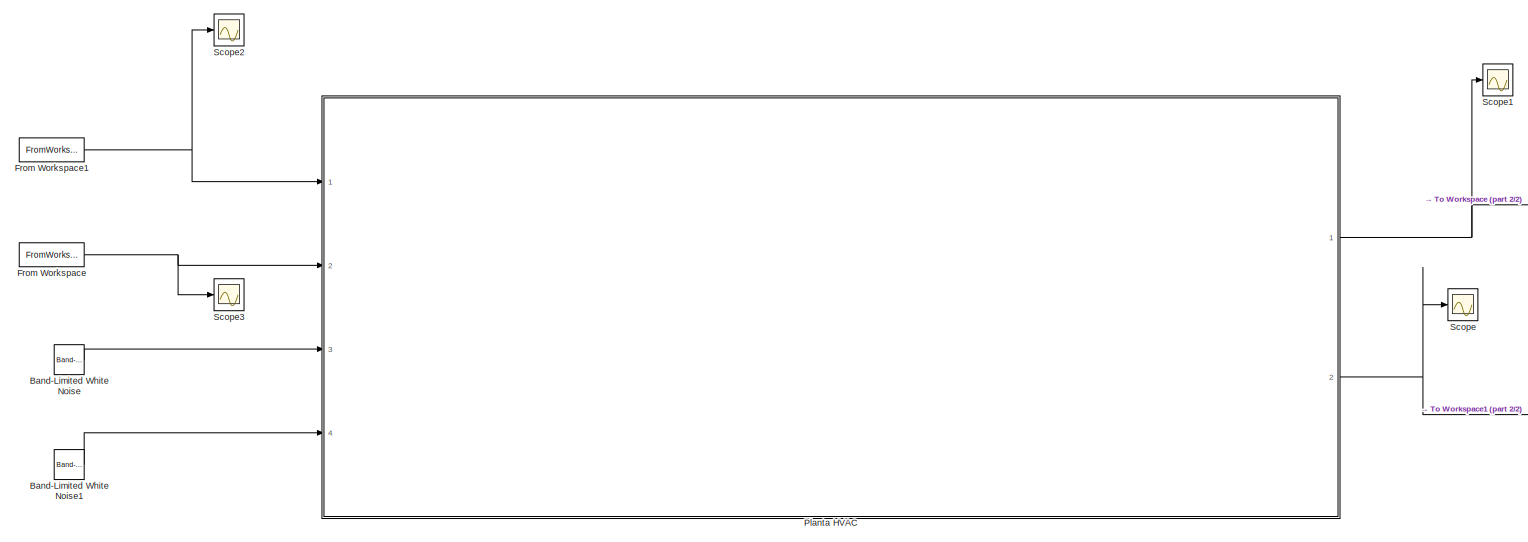
[diagram: root canvas - part 1/2, most of the canvas]
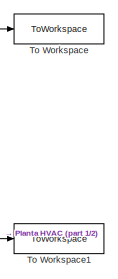
[diagram: root canvas - part 2/2, middle right region]
MODEL slx_469c2e52e8c5
KIND model
CONFIG AbsTol = auto
CONFIG EnableMultiTasking = off
CONFIG FixedStep = auto
CONFIG MaxStep = auto
CONFIG MinStep = auto
CONFIG RelTol = 1e-3
CONFIG SampleTimeConstraint = Unconstrained
CONFIG SolverName = VariableStepAuto
CONFIG StartTime = 0.0
CONFIG StopTime = Tfinal
BLOCK [Reference] Band-Limited White Noise  REF=simulink/Sources/Band-Limited
White Noise
  Ports = [0, 1]
  SourceBlock = simulink/Sources/Band-Limited\nWhite Noise
  SourceProductBaseCode = SL
  SourceType = Band-Limited White Noise.
BLOCK [Reference] Band-Limited White Noise1  REF=simulink/Sources/Band-Limited
White Noise
  Ports = [0, 1]
  SourceBlock = simulink/Sources/Band-Limited\nWhite Noise
  SourceProductBaseCode = SL
  SourceType = Band-Limited White Noise.
BLOCK [FromWorkspace] From Workspace
  SampleTime = Ts
  VariableName = temperatura
BLOCK [FromWorkspace] From Workspace1
  Interpolate = off
  OutputAfterFinalValue = Holding final value
  SampleTime = Ts
  VariableName = aprbs
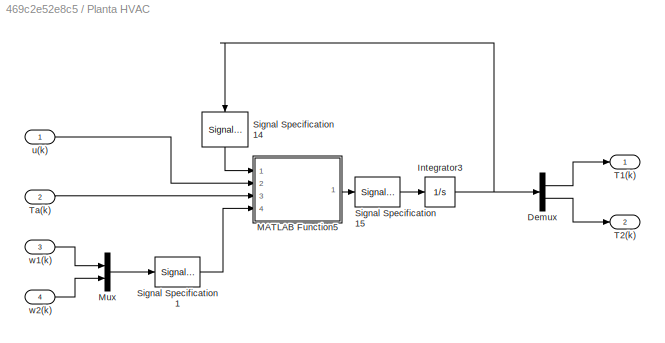
BLOCK [SubSystem] Planta HVAC
  Ports = [4, 2]
  RequestExecContextInheritance = off
  ShowPortLabels = FromPortBlockName
BLOCK [Demux] Planta HVAC/Demux
  Outputs = 2
  Ports = [1, 2]
BLOCK [Integrator] Planta HVAC/Integrator3
  InitialCondition = [10.12;10.12]
  Ports = [1, 1]
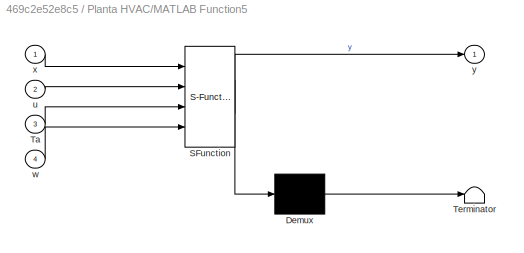
BLOCK [SubSystem] Planta HVAC/MATLAB Function5
  ErrorFcn = Stateflow.Translate.translate
  PermitHierarchicalResolution = ExplicitOnly
  Ports = [4, 1]
  RequestExecContextInheritance = off
  SFBlockType = MATLAB Function
  TreatAsAtomicUnit = on
BLOCK [Demux] Planta HVAC/MATLAB Function5/ Demux 
  Outputs = 1
  Ports = [1, 1]
BLOCK [S-Function] Planta HVAC/MATLAB Function5/ SFunction 
  EnableBusSupport = on
  FunctionName = sf_sfun
  PortCounts = [4 2]
  Ports = [4, 2]
  SFcnIsStateOwnerBlock = off
  SFunctionDeploymentMode = off
  Tag = Stateflow S-Function 10
BLOCK [Terminator] Planta HVAC/MATLAB Function5/ Terminator 
BLOCK [Inport] Planta HVAC/MATLAB Function5/Ta
  Port = 3
BLOCK [Inport] Planta HVAC/MATLAB Function5/u
  Port = 2
BLOCK [Inport] Planta HVAC/MATLAB Function5/w
  Port = 4
BLOCK [Inport] Planta HVAC/MATLAB Function5/x
BLOCK [Outport] Planta HVAC/MATLAB Function5/y
BLOCK [Mux] Planta HVAC/Mux
  DisplayOption = bar
  Inputs = 2
  Ports = [2, 1]
BLOCK [SignalSpecification] Planta HVAC/Signal Specification1
  Dimensions = [2,1]
  SampleTime = Ts
BLOCK [SignalSpecification] Planta HVAC/Signal Specification14
  Dimensions = [2,1]
  NameLocation = left
  SampleTime = Ts
BLOCK [SignalSpecification] Planta HVAC/Signal Specification15
  Dimensions = [2,1]
  SampleTime = Ts
BLOCK [Outport] Planta HVAC/T1(k)
BLOCK [Outport] Planta HVAC/T2(k)
  Port = 2
BLOCK [Inport] Planta HVAC/Ta(k)
  Port = 2
BLOCK [Inport] Planta HVAC/u(k)
BLOCK [Inport] Planta HVAC/w1(k)
  Port = 3
BLOCK [Inport] Planta HVAC/w2(k)
  Port = 4
BLOCK [Scope] Scope
  Floating = off
  NumInputPorts = 1
  Ports = [1]
  ScopeSpecificationString = Simulink.scopes.TimeScopeBlockCfg('CurrentConfiguration', extmgr.ConfigurationSet(extmgr.Configuration('Core','General UI',true),extmgr.Configuration('Core','Source UI',true),extmgr.Configuration('Sources','WiredSimulink',true),extmgr.Configuration('Visuals','Time Domain',true,'SerializedDisplays',{struct('MinYLimReal','10.11996','MaxYLimReal','10.12033','YLabelReal','','MinYLimMag','10.11996','Ma...<+1339ch>
BLOCK [Scope] Scope1
  Floating = off
  NumInputPorts = 1
  Ports = [1]
  ScopeSpecificationString = Simulink.scopes.TimeScopeBlockCfg('CurrentConfiguration', extmgr.ConfigurationSet(extmgr.Configuration('Core','General UI',true),extmgr.Configuration('Core','Source UI',true),extmgr.Configuration('Sources','WiredSimulink',true,'DataLoggingVariableName','ScopeData1'),extmgr.Configuration('Visuals','Time Domain',true,'SerializedDisplays',{struct('MinYLimReal','10.05601','MaxYLimReal','10.69588','YLa...<+1378ch>
BLOCK [Scope] Scope2
  Floating = off
  NumInputPorts = 1
  Ports = [1]
  ScopeSpecificationString = Simulink.scopes.TimeScopeBlockCfg('CurrentConfiguration', extmgr.ConfigurationSet(extmgr.Configuration('Core','General UI',true),extmgr.Configuration('Core','Source UI',true),extmgr.Configuration('Sources','WiredSimulink',true,'DataLoggingVariableName','ScopeData1'),extmgr.Configuration('Visuals','Time Domain',true,'SerializedDisplays',{struct('MinYLimReal','-0.24972','MaxYLimReal','2.24744','YLab...<+1445ch>
BLOCK [Scope] Scope3
  Floating = off
  NumInputPorts = 1
  Ports = [1]
  ScopeSpecificationString = Simulink.scopes.TimeScopeBlockCfg('CurrentConfiguration', extmgr.ConfigurationSet(extmgr.Configuration('Core','General UI',true),extmgr.Configuration('Core','Source UI',true),extmgr.Configuration('Sources','WiredSimulink',true,'DataLoggingVariableName','ScopeData2'),extmgr.Configuration('Visuals','Time Domain',true,'SerializedDisplays',{struct('MinYLimReal','5.46869','MaxYLimReal','11.02045','YLab...<+1375ch>
BLOCK [ToWorkspace] To Workspace
  FixptAsFi = on
  MaxDataPoints = inf
  Ports = [1]
  SampleTime = Ts
  Save2DSignal = 2-D array (concatenate along first dimension)
  VariableName = T1
BLOCK [ToWorkspace] To Workspace1
  FixptAsFi = on
  MaxDataPoints = inf
  Ports = [1]
  SampleTime = Ts
  Save2DSignal = 2-D array (concatenate along first dimension)
  VariableName = T2
LINE Band-Limited White Noise1:1 -> Planta HVAC:4
LINE Band-Limited White Noise:1 -> Planta HVAC:3
NET From Workspace1:1 -> Planta HVAC:1, Scope2:1
NET From Workspace:1 -> Planta HVAC:2, Scope3:1
LINE Planta HVAC/Demux:1 -> Planta HVAC/T1(k):1
LINE Planta HVAC/Demux:2 -> Planta HVAC/T2(k):1
NET Planta HVAC/Integrator3:1 -> Planta HVAC/Demux:1, Planta HVAC/Signal Specification14:1
LINE Planta HVAC/MATLAB Function5:1 -> Planta HVAC/Signal Specification15:1
LINE Planta HVAC/Mux:1 -> Planta HVAC/Signal Specification1:1
LINE Planta HVAC/Signal Specification14:1 -> Planta HVAC/MATLAB Function5:1
LINE Planta HVAC/Signal Specification15:1 -> Planta HVAC/Integrator3:1
LINE Planta HVAC/Signal Specification1:1 -> Planta HVAC/MATLAB Function5:4
LINE Planta HVAC/Ta(k):1 -> Planta HVAC/MATLAB Function5:3
LINE Planta HVAC/u(k):1 -> Planta HVAC/MATLAB Function5:2
LINE Planta HVAC/w1(k):1 -> Planta HVAC/Mux:1
LINE Planta HVAC/w2(k):1 -> Planta HVAC/Mux:2
NET Planta HVAC:1 -> Scope1:1, To Workspace:1
NET Planta HVAC:2 -> Scope:1, To Workspace1:1
note: NET lines group one-source signal fan-out (src -> all destinations, sorted); 1:1 wires keep LINE
CHART Planta HVAC/MATLAB Function5 states=1 transitions=1
  STATE_LABEL 'eML_blk_kernel()'
  STATE_LABEL 'SCRIPT:\nfunction y = fcn(x,u,Ta,w)\n%% Parametros\nc1=2.508*10^6;\nc2=4.636*10^7;\ncp=1012;\nR=1.7*10^(-3);\nRa=1.3*10^(-3);\ndelta=0.7;\nDeltaT=13;\n%% Constantes\na1=(cp*(1-delta))/c1;\na2=1/(R*c1);\na3=1/(Ra*c1);\na4=(DeltaT*cp)/c1;\na5=1/c1;\na6=1/(R*c2);\na7=1/c2;\n%% Calculo del sistema\nxdot=zeros(2,1);\nxdot(1)=a1*(Ta-x(1))*u+a2*(x(2)-x(1))+a3*(Ta-x(1))+a4*u+a5*w(1);\nxdot(2)=a6*(x(1)-x(2))+a7*w(2);\ny = xdot;...<+1ch>'
CHART  states=0 transitions=0
